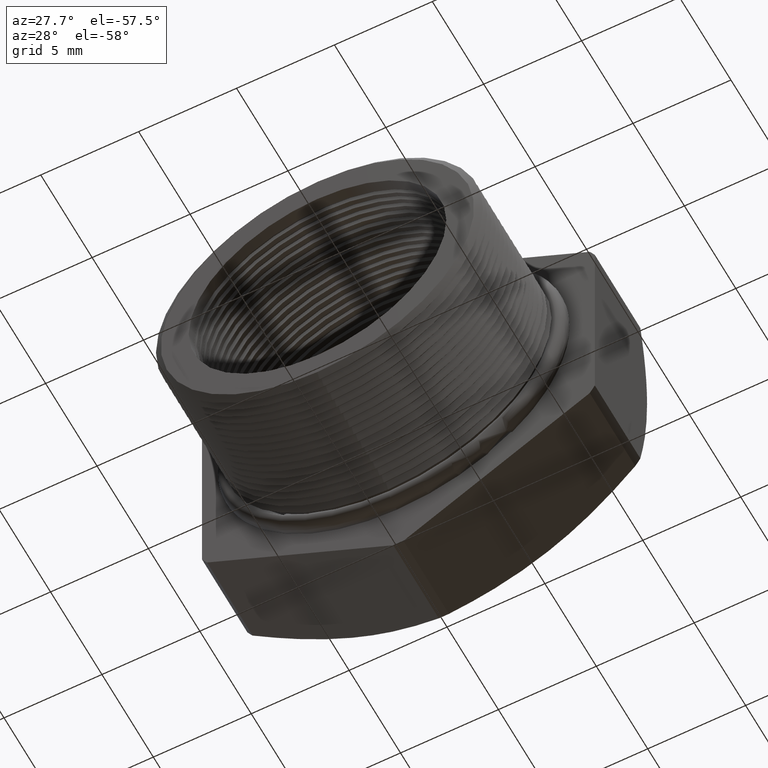
[diagram: clean part render]
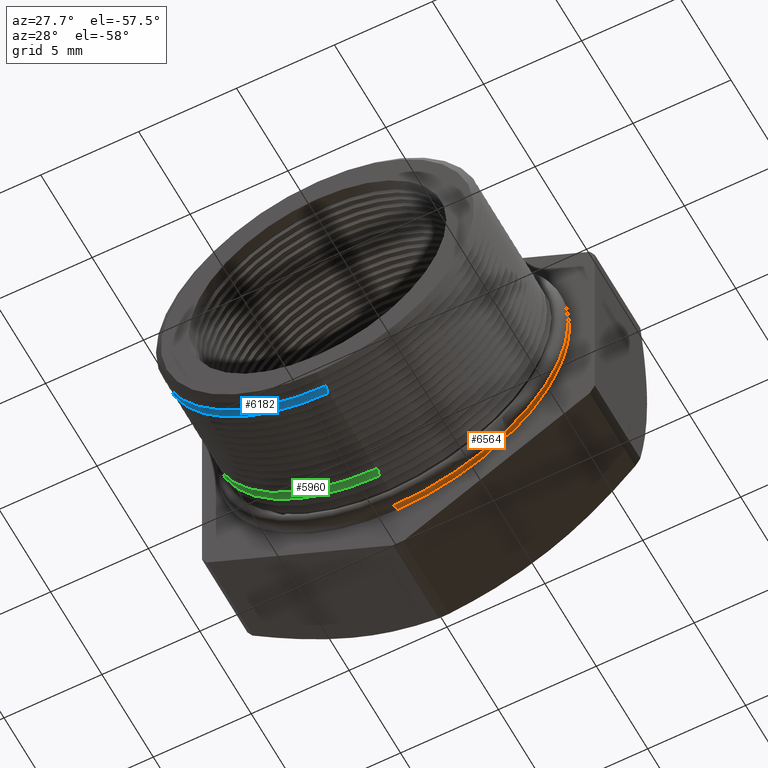
[diagram: same view with three faces highlighted in distinct colors, each labeled with its STEP entity id]
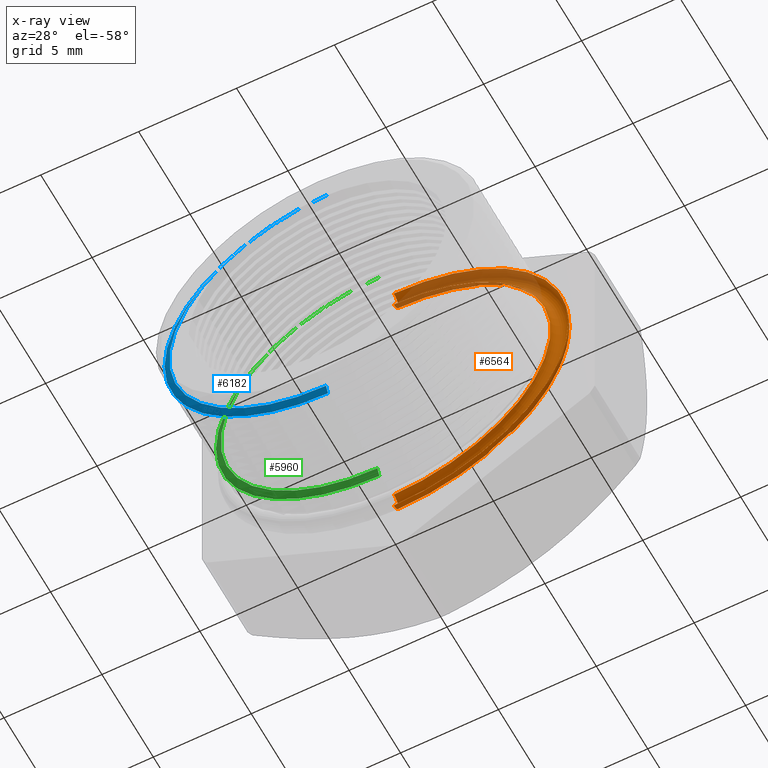
[diagram: x-ray of the same camera — body ghosted, the three highlighted faces saturated]
A machine part, auxiliary view with three faces highlighted in distinct colors.
The next image is the same camera in x-ray (body ghosted, the three faces saturated) — at least one of them is partly hidden behind the body in this view.
Their STEP definitions:

[orange] entity #6564 — the highlighted toroidal blend (fillet) surface has major radius 8.4582 mm and minor (blend) radius 0.4572 mm.
#3481 = DIRECTION ( 'NONE',  ( 0.0000000000000000000, 0.0000000000000000000, 1.000000000000000000 ) ) ;
#3482 = DIRECTION ( 'NONE',  ( -0.0000000000000000000, 1.000000000000000000, -0.0000000000000000000 ) ) ;
#3483 = CARTESIAN_POINT ( 'NONE',  ( 0.0000000000000000000, 0.1895548905829479400, 0.0000000000000000000 ) ) ;
#3484 = AXIS2_PLACEMENT_3D ( 'NONE', #3483, #3482, #3481 ) ;
#3486 = TOROIDAL_SURFACE ( 'NONE', #3484, 0.3329999999999999600, 0.01799999999999998800 ) ;
#3491 = FACE_OUTER_BOUND ( 'NONE', #6565, .T. ) ;
#3534 = DIRECTION ( 'NONE',  ( 0.0000000000000000000, 0.0000000000000000000, 1.000000000000000000 ) ) ;
#3535 = DIRECTION ( 'NONE',  ( -0.0000000000000000000, 1.000000000000000000, -0.0000000000000000000 ) ) ;
#3536 = CARTESIAN_POINT ( 'NONE',  ( 0.0000000000000000000, 0.1895548905829479400, 0.0000000000000000000 ) ) ;
#3537 = AXIS2_PLACEMENT_3D ( 'NONE', #3536, #3535, #3534 ) ;
#3538 = CIRCLE ( 'NONE', #3537, 0.3150000000000000000 ) ;
#3539 = DIRECTION ( 'NONE',  ( 0.0000000000000000000, 0.0000000000000000000, 1.000000000000000000 ) ) ;
#3540 = DIRECTION ( 'NONE',  ( -0.0000000000000000000, 1.000000000000000000, -0.0000000000000000000 ) ) ;
#3541 = CARTESIAN_POINT ( 'NONE',  ( 0.0000000000000000000, 0.1895548905829479400, 0.0000000000000000000 ) ) ;
#3542 = AXIS2_PLACEMENT_3D ( 'NONE', #3541, #3540, #3539 ) ;
#3547 = CIRCLE ( 'NONE', #3542, 0.3509999999999999800 ) ;
#3566 = CARTESIAN_POINT ( 'NONE',  ( 0.0000000000000000000, 0.1895548905829479400, 0.3150000000000000000 ) ) ;
#3567 = DIRECTION ( 'NONE',  ( 0.0000000000000000000, 0.0000000000000000000, 1.000000000000000000 ) ) ;
#3568 = DIRECTION ( 'NONE',  ( -1.000000000000000000, 0.0000000000000000000, 0.0000000000000000000 ) ) ;
#3569 = CARTESIAN_POINT ( 'NONE',  ( 0.0000000000000000000, 0.1895548905829479400, 0.3329999999999999600 ) ) ;
#3570 = AXIS2_PLACEMENT_3D ( 'NONE', #3569, #3568, #3567 ) ;
#3571 = CIRCLE ( 'NONE', #3570, 0.01799999999999998500 ) ;
#3572 = CARTESIAN_POINT ( 'NONE',  ( 0.0000000000000000000, 0.1895548905829479400, 0.3509999999999999800 ) ) ;
#3578 = CARTESIAN_POINT ( 'NONE',  ( 3.857637417314162100E-017, 0.1895548905829479400, -0.3150000000000000000 ) ) ;
#3579 = CARTESIAN_POINT ( 'NONE',  ( 4.298510265007209500E-017, 0.1895548905829479400, -0.3509999999999999800 ) ) ;
#3580 = DIRECTION ( 'NONE',  ( 1.224646799147354900E-016, 0.0000000000000000000, -1.000000000000000000 ) ) ;
#3581 = DIRECTION ( 'NONE',  ( 1.000000000000000000, 0.0000000000000000000, 1.224646799147353200E-016 ) ) ;
#3582 = CARTESIAN_POINT ( 'NONE',  ( 4.078073841160685800E-017, 0.1895548905829479400, -0.3329999999999999600 ) ) ;
#3583 = AXIS2_PLACEMENT_3D ( 'NONE', #3582, #3581, #3580 ) ;
#3584 = CIRCLE ( 'NONE', #3583, 0.01799999999999998500 ) ;
#6564 = ADVANCED_FACE ( 'NONE', ( #3491 ), #3486, .T. ) ;
#6565 = EDGE_LOOP ( 'NONE', ( #6566, #6618, #6620, #6621 ) ) ;
#6566 = ORIENTED_EDGE ( 'NONE', *, *, #6638, .F. ) ;
#6618 = ORIENTED_EDGE ( 'NONE', *, *, #6619, .T. ) ;
#6619 = EDGE_CURVE ( 'NONE', #6636, #6632, #3547, .T. ) ;
#6620 = ORIENTED_EDGE ( 'NONE', *, *, #6631, .T. ) ;
#6621 = ORIENTED_EDGE ( 'NONE', *, *, #6622, .F. ) ;
#6622 = EDGE_CURVE ( 'NONE', #6639, #6633, #3538, .T. ) ;
#6631 = EDGE_CURVE ( 'NONE', #6632, #6633, #3584, .T. ) ;
#6632 = VERTEX_POINT ( 'NONE', #3579 ) ;
#6633 = VERTEX_POINT ( 'NONE', #3578 ) ;
#6636 = VERTEX_POINT ( 'NONE', #3572 ) ;
#6638 = EDGE_CURVE ( 'NONE', #6636, #6639, #3571, .T. ) ;
#6639 = VERTEX_POINT ( 'NONE', #3566 ) ;

[blue] entity #6182 — the highlighted conical surface has half-angle 60 deg.
#841 = CARTESIAN_POINT ( 'NONE',  ( 0.0000000000000000000, -0.06999746364411302300, -0.3150000000000000000 ) ) ;
#842 = CARTESIAN_POINT ( 'NONE',  ( 3.857637417314162700E-017, -0.06999746364411302300, 0.3150000000000000000 ) ) ;
#874 = DIRECTION ( 'NONE',  ( 0.0000000000000000000, 0.5000000000000008900, 0.8660254037844380400 ) ) ;
#875 = VECTOR ( 'NONE', #874, 39.37007874015748100 ) ;
#876 = CARTESIAN_POINT ( 'NONE',  ( 0.0000000000000000000, -0.06204510941705208100, 0.3287738815610546400 ) ) ;
#877 = LINE ( 'NONE', #876, #875 ) ;
#878 = DIRECTION ( 'NONE',  ( 1.060575238724906300E-016, 0.5000000000000008900, -0.8660254037844380400 ) ) ;
#879 = VECTOR ( 'NONE', #878, 39.37007874015748100 ) ;
#880 = CARTESIAN_POINT ( 'NONE',  ( 4.026318816969965600E-017, -0.06204510941705208100, -0.3287738815610546400 ) ) ;
#881 = LINE ( 'NONE', #880, #879 ) ;
#928 = CARTESIAN_POINT ( 'NONE',  ( 4.026318816969966200E-017, -0.06204510941705208100, 0.3287738815610546400 ) ) ;
#929 = CARTESIAN_POINT ( 'NONE',  ( 0.0000000000000000000, -0.06204510941705208100, -0.3287738815610546400 ) ) ;
#2365 = DIRECTION ( 'NONE',  ( -0.0000000000000000000, 1.000000000000000000, -0.0000000000000000000 ) ) ;
#2366 = CARTESIAN_POINT ( 'NONE',  ( 0.0000000000000000000, -0.06999746364411302300, 0.0000000000000000000 ) ) ;
#2367 = AXIS2_PLACEMENT_3D ( 'NONE', #2366, #2365, #2425 ) ;
#2368 = CIRCLE ( 'NONE', #2367, 0.3150000000000000000 ) ;
#2425 = DIRECTION ( 'NONE',  ( 0.0000000000000000000, 0.0000000000000000000, 1.000000000000000000 ) ) ;
#2977 = DIRECTION ( 'NONE',  ( 0.0000000000000000000, 0.0000000000000000000, 1.000000000000000000 ) ) ;
#2978 = DIRECTION ( 'NONE',  ( -0.0000000000000000000, 1.000000000000000000, -0.0000000000000000000 ) ) ;
#2979 = CARTESIAN_POINT ( 'NONE',  ( 0.0000000000000000000, -0.06204510941705208100, 0.0000000000000000000 ) ) ;
#2980 = AXIS2_PLACEMENT_3D ( 'NONE', #2979, #2978, #2977 ) ;
#2982 = CONICAL_SURFACE ( 'NONE', #2980, 0.3287738815610546400, 1.047197551196596700 ) ;
#2983 = FACE_OUTER_BOUND ( 'NONE', #6129, .T. ) ;
#2984 = DIRECTION ( 'NONE',  ( 0.0000000000000000000, 0.0000000000000000000, 1.000000000000000000 ) ) ;
#2985 = DIRECTION ( 'NONE',  ( -0.0000000000000000000, 1.000000000000000000, -0.0000000000000000000 ) ) ;
#2986 = CARTESIAN_POINT ( 'NONE',  ( 0.0000000000000000000, -0.06204510941705208100, 0.0000000000000000000 ) ) ;
#2987 = AXIS2_PLACEMENT_3D ( 'NONE', #2986, #2985, #2984 ) ;
#2988 = CIRCLE ( 'NONE', #2987, 0.3287738815610546400 ) ;
#5013 = VERTEX_POINT ( 'NONE', #842 ) ;
#5018 = VERTEX_POINT ( 'NONE', #841 ) ;
#5032 = EDGE_CURVE ( 'NONE', #5018, #5037, #881, .T. ) ;
#5033 = EDGE_CURVE ( 'NONE', #5013, #5038, #877, .T. ) ;
#5037 = VERTEX_POINT ( 'NONE', #929 ) ;
#5038 = VERTEX_POINT ( 'NONE', #928 ) ;
#5795 = EDGE_CURVE ( 'NONE', #5018, #5013, #2368, .T. ) ;
#6109 = ORIENTED_EDGE ( 'NONE', *, *, #5795, .T. ) ;
#6110 = ORIENTED_EDGE ( 'NONE', *, *, #5033, .T. ) ;
#6111 = ORIENTED_EDGE ( 'NONE', *, *, #6181, .F. ) ;
#6129 = EDGE_LOOP ( 'NONE', ( #6183, #6109, #6110, #6111 ) ) ;
#6181 = EDGE_CURVE ( 'NONE', #5037, #5038, #2988, .T. ) ;
#6182 = ADVANCED_FACE ( 'NONE', ( #2983 ), #2982, .T. ) ;
#6183 = ORIENTED_EDGE ( 'NONE', *, *, #5032, .F. ) ;

[green] entity #5960 — the highlighted conical surface has half-angle 60 deg.
#2522 = DIRECTION ( 'NONE',  ( 0.0000000000000000000, 0.0000000000000000000, 1.000000000000000000 ) ) ;
#2523 = DIRECTION ( 'NONE',  ( -0.0000000000000000000, 1.000000000000000000, -0.0000000000000000000 ) ) ;
#2524 = CARTESIAN_POINT ( 'NONE',  ( 0.0000000000000000000, 0.1268025363558869800, 0.0000000000000000000 ) ) ;
#2525 = AXIS2_PLACEMENT_3D ( 'NONE', #2524, #2523, #2522 ) ;
#2526 = CIRCLE ( 'NONE', #2525, 0.3150000000000000000 ) ;
#2692 = DIRECTION ( 'NONE',  ( 0.0000000000000000000, 0.0000000000000000000, 1.000000000000000000 ) ) ;
#2693 = DIRECTION ( 'NONE',  ( -0.0000000000000000000, 1.000000000000000000, -0.0000000000000000000 ) ) ;
#2694 = CARTESIAN_POINT ( 'NONE',  ( 0.0000000000000000000, 0.1347548905829479300, 0.0000000000000000000 ) ) ;
#2695 = AXIS2_PLACEMENT_3D ( 'NONE', #2694, #2693, #2692 ) ;
#2697 = CONICAL_SURFACE ( 'NONE', #2695, 0.3287738815610546400, 1.047197551196596700 ) ;
#2698 = FACE_OUTER_BOUND ( 'NONE', #5961, .T. ) ;
#2699 = DIRECTION ( 'NONE',  ( 0.0000000000000000000, 0.0000000000000000000, 1.000000000000000000 ) ) ;
#2700 = DIRECTION ( 'NONE',  ( -0.0000000000000000000, 1.000000000000000000, -0.0000000000000000000 ) ) ;
#2701 = CARTESIAN_POINT ( 'NONE',  ( 0.0000000000000000000, 0.1347548905829479300, 0.0000000000000000000 ) ) ;
#2702 = AXIS2_PLACEMENT_3D ( 'NONE', #2701, #2700, #2699 ) ;
#2703 = CIRCLE ( 'NONE', #2702, 0.3287738815610546400 ) ;
#4448 = VERTEX_POINT ( 'NONE', #7824 ) ;
#4449 = VERTEX_POINT ( 'NONE', #7823 ) ;
#4451 = EDGE_CURVE ( 'NONE', #4449, #4452, #7885, .T. ) ;
#4452 = VERTEX_POINT ( 'NONE', #7881 ) ;
#4455 = VERTEX_POINT ( 'NONE', #7874 ) ;
#4457 = EDGE_CURVE ( 'NONE', #4448, #4455, #7873, .T. ) ;
#5870 = EDGE_CURVE ( 'NONE', #4449, #4448, #2526, .T. ) ;
#5959 = EDGE_CURVE ( 'NONE', #4452, #4455, #2703, .T. ) ;
#5960 = ADVANCED_FACE ( 'NONE', ( #2698 ), #2697, .T. ) ;
#5961 = EDGE_LOOP ( 'NONE', ( #5962, #5963, #5964, #5965 ) ) ;
#5962 = ORIENTED_EDGE ( 'NONE', *, *, #4451, .F. ) ;
#5963 = ORIENTED_EDGE ( 'NONE', *, *, #5870, .T. ) ;
#5964 = ORIENTED_EDGE ( 'NONE', *, *, #4457, .T. ) ;
#5965 = ORIENTED_EDGE ( 'NONE', *, *, #5959, .F. ) ;
#7823 = CARTESIAN_POINT ( 'NONE',  ( 0.0000000000000000000, 0.1268025363558869800, -0.3150000000000000000 ) ) ;
#7824 = CARTESIAN_POINT ( 'NONE',  ( 3.857637417314162700E-017, 0.1268025363558869800, 0.3150000000000000000 ) ) ;
#7870 = DIRECTION ( 'NONE',  ( 0.0000000000000000000, 0.5000000000000008900, 0.8660254037844380400 ) ) ;
#7871 = VECTOR ( 'NONE', #7870, 39.37007874015748100 ) ;
#7872 = CARTESIAN_POINT ( 'NONE',  ( 0.0000000000000000000, 0.1347548905829479300, 0.3287738815610546400 ) ) ;
#7873 = LINE ( 'NONE', #7872, #7871 ) ;
#7874 = CARTESIAN_POINT ( 'NONE',  ( 4.026318816969966200E-017, 0.1347548905829479300, 0.3287738815610546400 ) ) ;
#7881 = CARTESIAN_POINT ( 'NONE',  ( 0.0000000000000000000, 0.1347548905829479300, -0.3287738815610546400 ) ) ;
#7882 = DIRECTION ( 'NONE',  ( 1.060575238724906300E-016, 0.5000000000000008900, -0.8660254037844380400 ) ) ;
#7883 = VECTOR ( 'NONE', #7882, 39.37007874015748100 ) ;
#7884 = CARTESIAN_POINT ( 'NONE',  ( 4.026318816969965600E-017, 0.1347548905829479300, -0.3287738815610546400 ) ) ;
#7885 = LINE ( 'NONE', #7884, #7883 ) ;